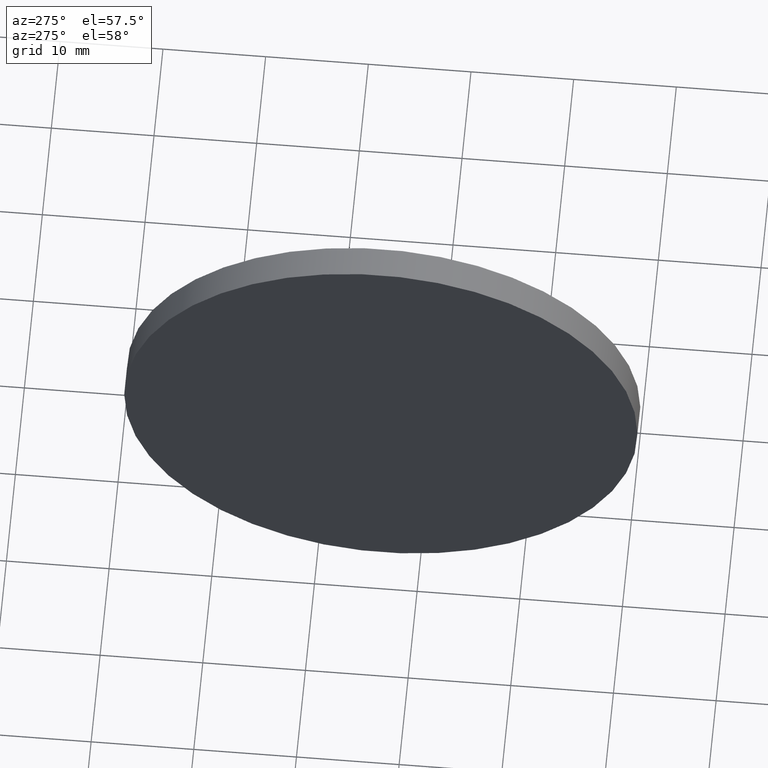
[diagram: clean part render]
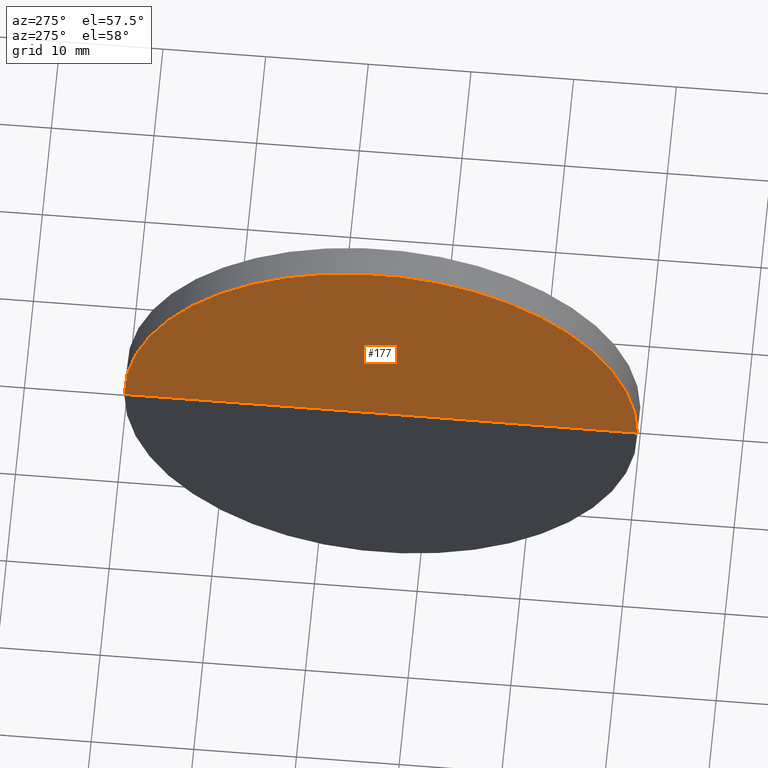
[diagram: same view with one face highlighted and labeled with its STEP entity id]
A machine part, auxiliary view. The second image highlights one B-rep face of the part: STEP entity #177.
In plain terms, the highlighted conical surface has half-angle 89.889 deg.
Its self-contained STEP definition (entity closure, byte-faithful):
#8 = DIRECTION ( 'NONE',  ( -0.001942444661694166000, -0.9999981134525887100, 0.0000000000000000000 ) ) ;
#20 = DIRECTION ( 'NONE',  ( -0.9999981134525887100, 0.001942444661694015300, -0.0000000000000000000 ) ) ;
#31 = CONICAL_SURFACE ( 'NONE', #36, 24.99995283631470500, 1.568853880911697000 ) ;
#34 = ORIENTED_EDGE ( 'NONE', *, *, #153, .T. ) ;
#36 = AXIS2_PLACEMENT_3D ( 'NONE', #151, #71, #8 ) ;
#41 = VECTOR ( 'NONE', #108, 1000.000000000000000 ) ;
#43 = CARTESIAN_POINT ( 'NONE',  ( 453.5976624801175500, -11.15919260026350700, 0.0000000000000000000 ) ) ;
#45 = CARTESIAN_POINT ( 'NONE',  ( 453.5491014551880700, -36.15909827298190000, 0.0000000000000000000 ) ) ;
#46 = DIRECTION ( 'NONE',  ( -0.003884881994360192500, -0.9999924538174724800, 0.0000000000000000000 ) ) ;
#54 = EDGE_LOOP ( 'NONE', ( #164, #34, #139 ) ) ;
#57 = VECTOR ( 'NONE', #46, 1000.000000000000100 ) ;
#61 = VERTEX_POINT ( 'NONE', #135 ) ;
#64 = VERTEX_POINT ( 'NONE', #43 ) ;
#70 = EDGE_CURVE ( 'NONE', #154, #64, #85, .T. ) ;
#71 = DIRECTION ( 'NONE',  ( -0.9999981134525887100, 0.001942444661694015300, -0.0000000000000000000 ) ) ;
#85 = LINE ( 'NONE', #179, #41 ) ;
#93 = CARTESIAN_POINT ( 'NONE',  ( 453.5976624801175500, -36.15919260026350900, 0.0000000000000000000 ) ) ;
#103 = AXIS2_PLACEMENT_3D ( 'NONE', #45, #20, #167 ) ;
#108 = DIRECTION ( 'NONE',  ( -5.876375774871434000E-017, 1.000000000000000000, 1.224644488793104600E-016 ) ) ;
#135 = CARTESIAN_POINT ( 'NONE',  ( 453.5005404302585800, -61.15900394570029900, 3.061611221982759500E-015 ) ) ;
#137 = EDGE_CURVE ( 'NONE', #61, #64, #186, .T. ) ;
#139 = ORIENTED_EDGE ( 'NONE', *, *, #137, .T. ) ;
#149 = LINE ( 'NONE', #168, #57 ) ;
#151 = CARTESIAN_POINT ( 'NONE',  ( 453.5491014551880700, -36.15909827298190000, 0.0000000000000000000 ) ) ;
#153 = EDGE_CURVE ( 'NONE', #154, #61, #149, .T. ) ;
#154 = VERTEX_POINT ( 'NONE', #93 ) ;
#164 = ORIENTED_EDGE ( 'NONE', *, *, #70, .F. ) ;
#167 = DIRECTION ( 'NONE',  ( -0.001942444661694166000, -0.9999981134525887100, 0.0000000000000000000 ) ) ;
#168 = CARTESIAN_POINT ( 'NONE',  ( 453.5005404302585800, -61.15900394570029900, 0.0000000000000000000 ) ) ;
#175 = FACE_OUTER_BOUND ( 'NONE', #54, .T. ) ;
#177 = ADVANCED_FACE ( 'NONE', ( #175 ), #31, .F. ) ;
#179 = CARTESIAN_POINT ( 'NONE',  ( 453.5976624801175500, -11.15919260026350700, 3.061611221982759500E-015 ) ) ;
#186 = CIRCLE ( 'NONE', #103, 24.99995283631470500 ) ;